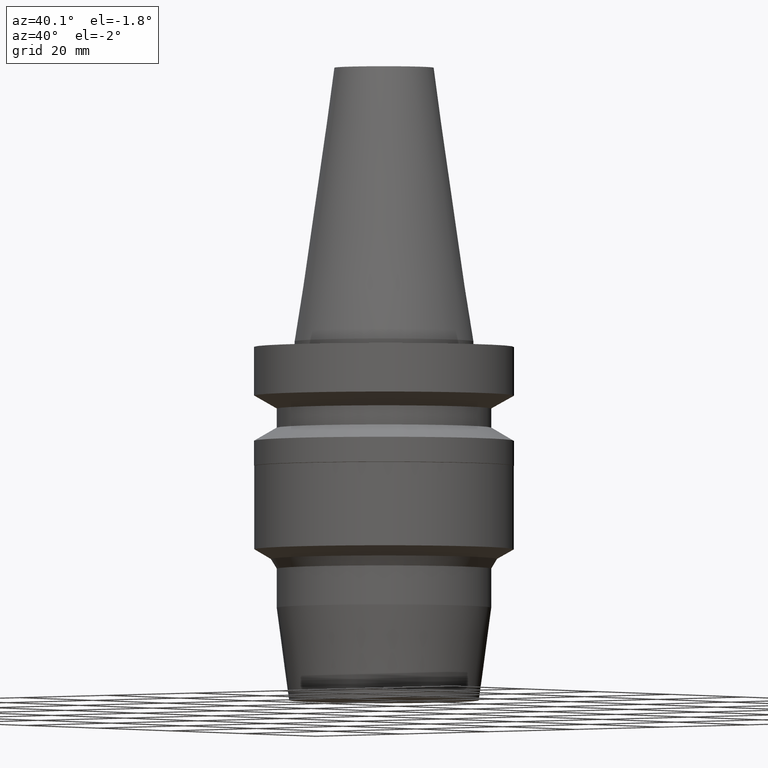
[diagram: clean part render]
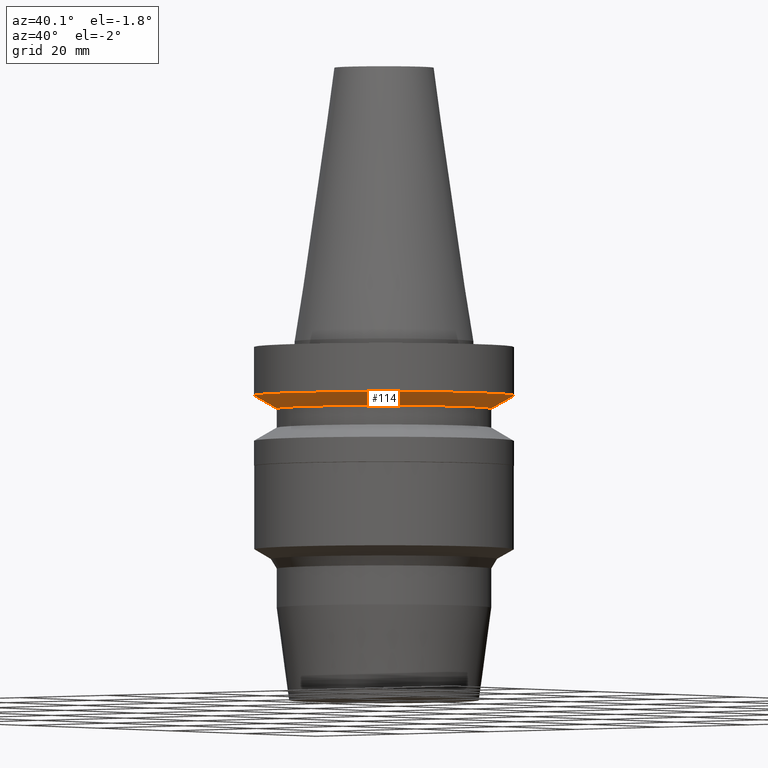
[diagram: same view with one face highlighted and labeled with its STEP entity id]
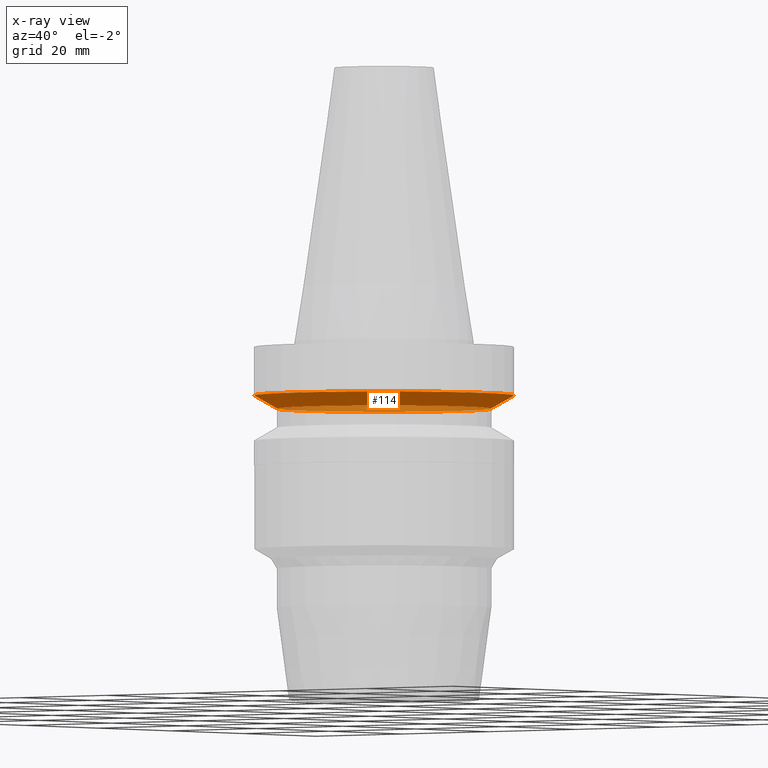
[diagram: x-ray of the same camera — body ghosted, the highlighted face saturated]
A machine part, auxiliary view. The second image highlights one B-rep face of the part: STEP entity #114.
The next image is the same camera in x-ray: the body ghosted, the highlighted face saturated — about 25% of this face is hidden behind the body in this view.
In plain terms, the highlighted conical surface has half-angle 60 deg.
Its self-contained STEP definition (entity closure, byte-faithful):
#88=EDGE_CURVE('Unnamed[1]',#203,#203,#204,.T.);
#114=ADVANCED_FACE('Unnamed[1]',(#243,#244),#245,.T.);
#125=EDGE_CURVE('Unnamed[1]',#260,#260,#261,.T.);
#203=VERTEX_POINT('',#347);
#204=CIRCLE('',#348,23.0);
#243=FACE_BOUND('',#398,.T.);
#244=FACE_BOUND('',#399,.T.);
#245=CONICAL_SURFACE('',#400,21.0,1.04719755058881);
#260=VERTEX_POINT('',#419);
#261=CIRCLE('',#420,19.0);
#347=CARTESIAN_POINT('',(5.87830463590729E-016,23.0,-9.59999999999999));
#348=AXIS2_PLACEMENT_3D('',#497,#498,#499);
#398=EDGE_LOOP('',(#540));
#399=EDGE_LOOP('',(#541));
#400=AXIS2_PLACEMENT_3D('',#542,#543,#544);
#419=CARTESIAN_POINT('',(7.29240495619202E-016,19.0,-11.90940108));
#420=AXIS2_PLACEMENT_3D('',#561,#562,#563);
#497=CARTESIAN_POINT('',(5.87830463590729E-016,1.17566092718146E-015,-9.59999999999999));
#498=DIRECTION('',(6.12323399573677E-017,1.22464679914735E-016,-1.0));
#499=DIRECTION('',(-1.23259516440783E-032,1.0,1.22464679914735E-016));
#540=ORIENTED_EDGE('',*,*,#125,.F.);
#541=ORIENTED_EDGE('',*,*,#88,.T.);
#542=CARTESIAN_POINT('',(6.58535479604966E-016,1.31707095920993E-015,-10.75470054));
#543=DIRECTION('',(-6.12323399573677E-017,-1.22464679914735E-016,1.0));
#544=DIRECTION('',(-1.23259516440783E-032,1.0,1.22464679914735E-016));
#561=CARTESIAN_POINT('',(7.29240495619202E-016,1.4584809912384E-015,-11.90940108));
#562=DIRECTION('',(6.12323399573677E-017,1.22464679914735E-016,-1.0));
#563=DIRECTION('',(-1.23259516440783E-032,1.0,1.22464679914735E-016));